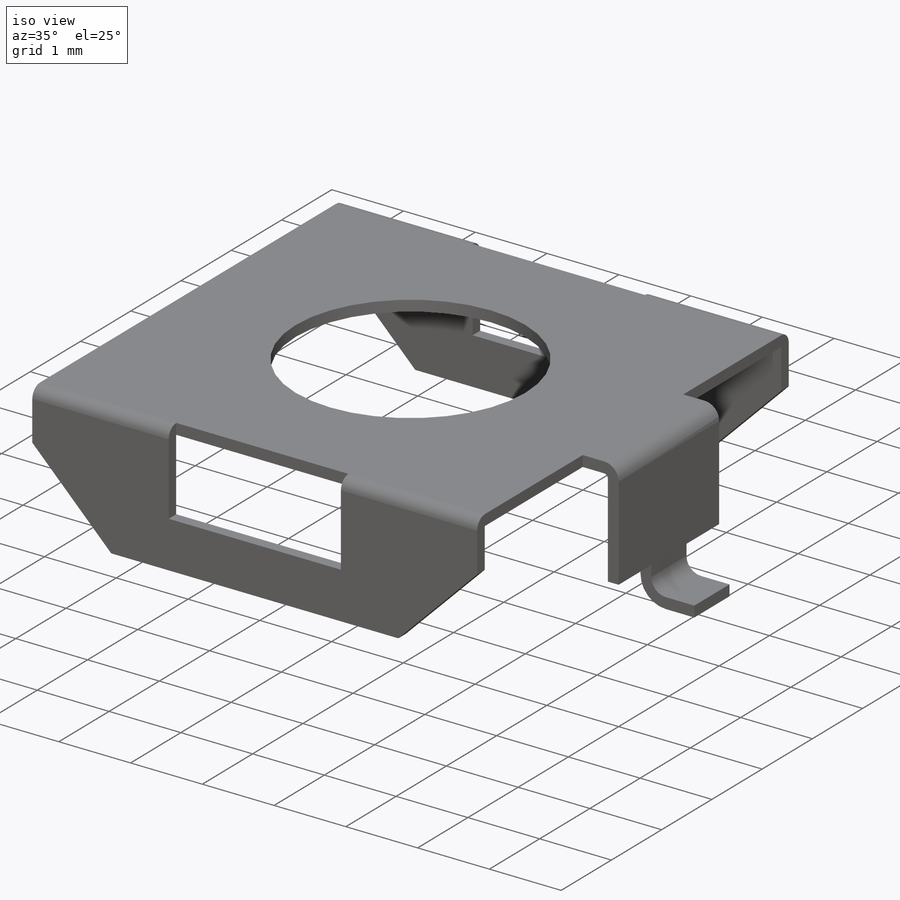
[diagram: iso view]
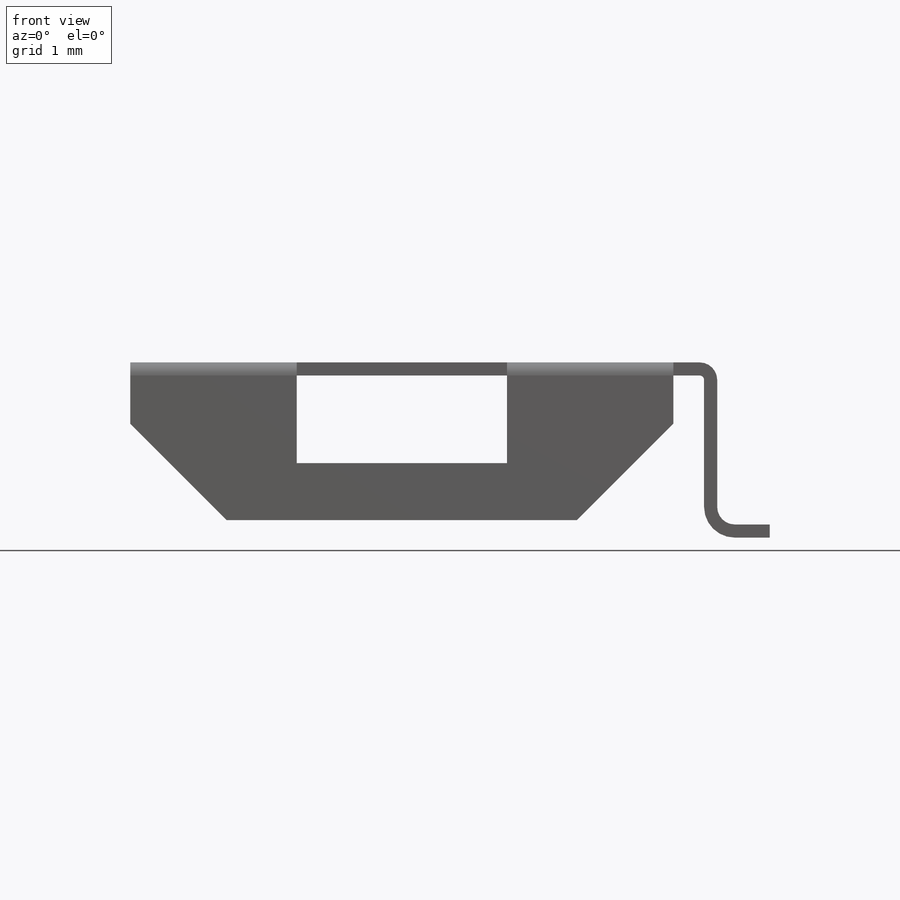
[diagram: front view]
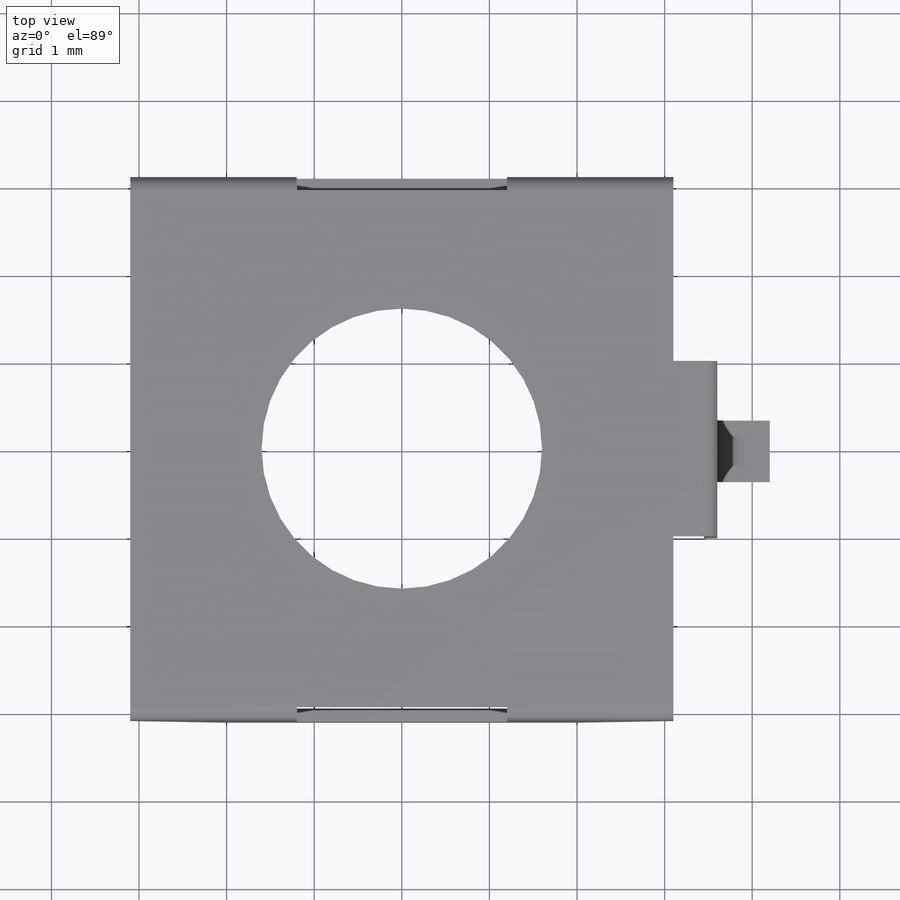
[diagram: top view]
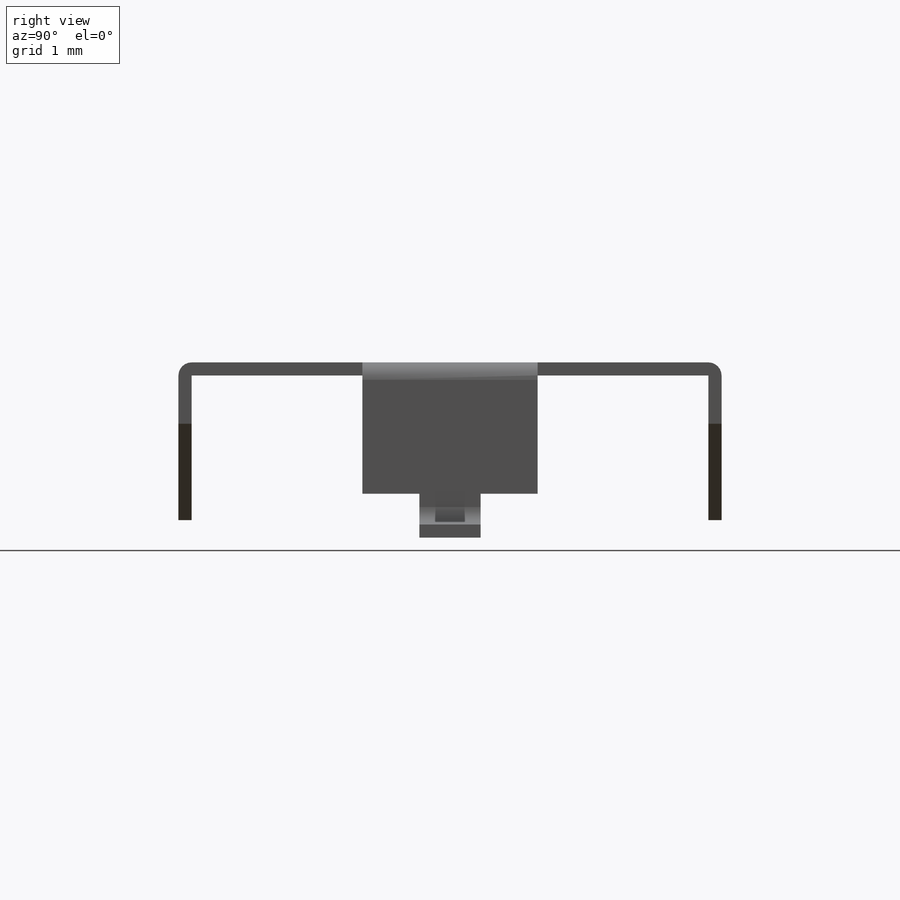
[diagram: right view]
SOLIDWORKS PART (.sldprt)
format: sldprt  version: not decoded by parser v0  size: 260,096 bytes
history: native  units: mm
features: sketch x6, cut_extrude x4, material x1, fillet x1 (+13 scaffold rows collapsed)
feature tree (25):
  scaffold x13  (default folders/planes/origin — collapsed)
  material  "Material <not specified>"
  sketch  "Sketch1"  dims[c1.D1=2.0mm c1.D2=6.2mm c1.D3=3.1mm c1.D4=1.8mm c2.D1=6.2mm c2.D5=0.15mm c2.D6=1.0mm c2.D7=5.0mm]
  sketch  "Sketch2"  dims[c1.D1=4.0mm c1.D2=2.0mm c1.D3=1.1mm c2.D3=45.0deg c2.D4=~1.690745mm c3.D4=45.0deg c3.D5=2.4mm c3.D6=1.2mm c3.D7=1.0mm]
  cut_extrude  "Cut-Extrude1"  [1 undecoded]
  sketch  "Sketch3"
  cut_extrude  "Cut-Extrude2"  Depth=1mm
  fillet  "Fillet1"  Radius=0.15mm
  sketch  "Sketch4"  dims[D1=3.2mm]
  cut_extrude  "Cut-Extrude3"  Depth=1mm
  sketch  "Sketch5"  dims[c1.D5=0.2mm c1.D1=0.15mm c1.D2=3.6mm c1.D3=0.5mm c1.D4=4.2mm c2.D1=2.0mm c2.D5=0.15mm c2.D6=1.0mm c2.D7=5.0mm]
  sketch  "Sketch6"  dims[D1=1.0mm D2=0.7mm]
  cut_extrude  "Cut-Extrude4"  Depth=0.5mm
decode coverage: 9 of 11 modeling features carry decoded parameters
note: ~ marks probable driven/reference dimensions
note: 1 parameter value undecoded
note: suppression state not decoded; provenance and decode notes live in map.json
